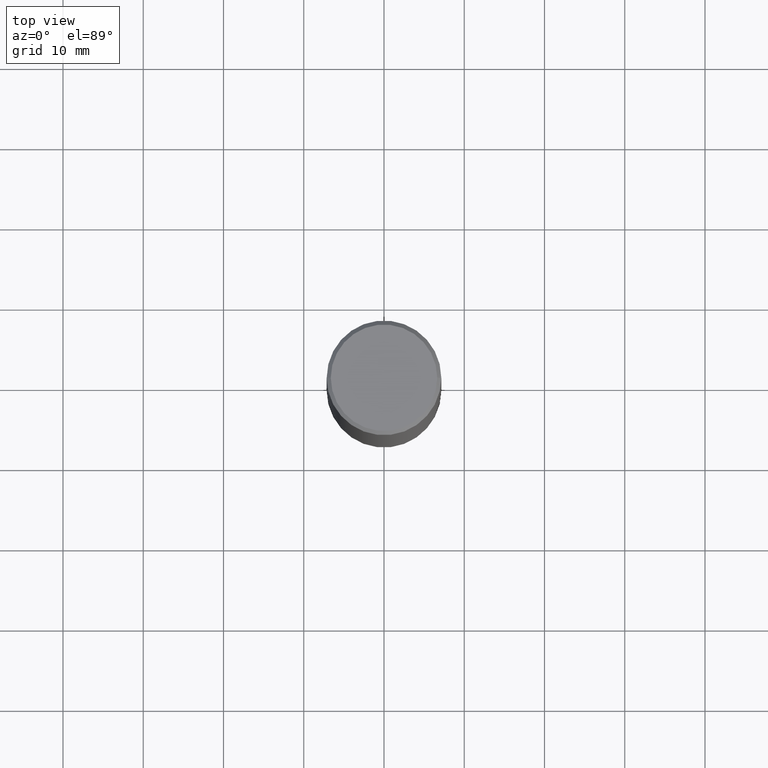
[diagram: clean part render]
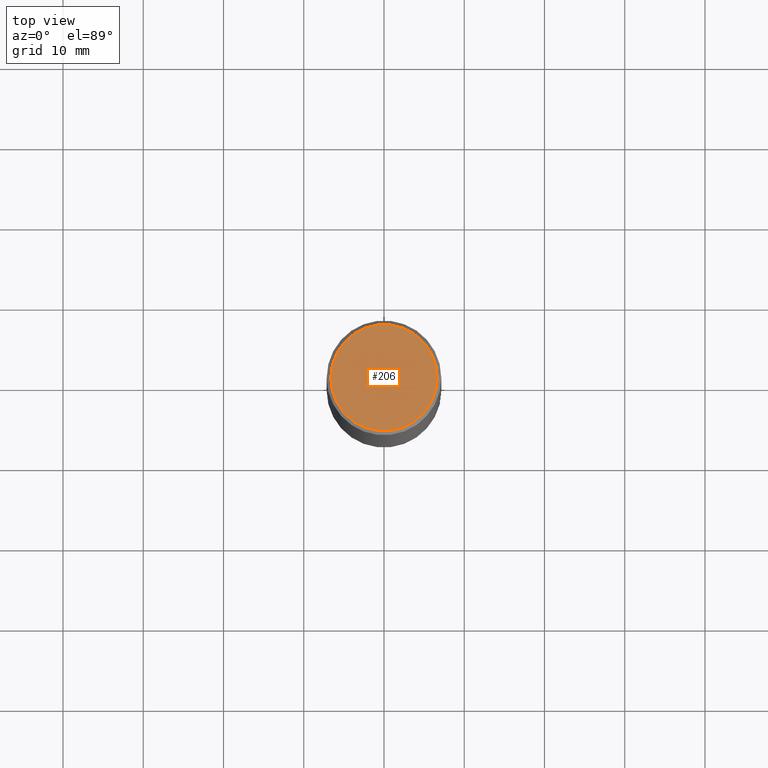
[diagram: same view with one face highlighted and labeled with its STEP entity id]
A machine part, top view. The second image highlights one B-rep face of the part: STEP entity #206.
In plain terms, the highlighted planar face has unit normal (0, -0, -1).
Its self-contained STEP definition (entity closure, byte-faithful):
#9 = AXIS2_PLACEMENT_3D ( 'NONE', #67, #46, #144 ) ;
#14 = CARTESIAN_POINT ( 'NONE',  ( 0.000000000000000000, 0.000000000000000000, 0.000000000000000000 ) ) ;
#16 = CARTESIAN_POINT ( 'NONE',  ( 1.824298999545534733E-15, 0.2612499999999996492, -9.121494997727705218E-16 ) ) ;
#46 = DIRECTION ( 'NONE',  ( -2.445468806185136597E-29, 3.491481338843145583E-15, 1.000000000000000000 ) ) ;
#65 = EDGE_CURVE ( 'NONE', #125, #223, #137, .T. ) ;
#67 = CARTESIAN_POINT ( 'NONE',  ( 0.000000000000000000, 0.000000000000000000, 0.000000000000000000 ) ) ;
#83 = EDGE_CURVE ( 'NONE', #223, #125, #350, .T. ) ;
#95 = AXIS2_PLACEMENT_3D ( 'NONE', #16, #150, #189 ) ;
#118 = DIRECTION ( 'NONE',  ( -2.445468806185136597E-29, 3.491481338843145583E-15, 1.000000000000000000 ) ) ;
#123 = ORIENTED_EDGE ( 'NONE', *, *, #65, .T. ) ;
#125 = VERTEX_POINT ( 'NONE', #280 ) ;
#137 = CIRCLE ( 'NONE', #347, 0.2612499999999996492 ) ;
#144 = DIRECTION ( 'NONE',  ( 1.000000000000000000, -6.982962677686266711E-15, 4.876176775795934672E-29 ) ) ;
#150 = DIRECTION ( 'NONE',  ( 2.438088387897960049E-29, -3.491481338843145188E-15, -1.000000000000000000 ) ) ;
#189 = DIRECTION ( 'NONE',  ( -1.000000000000000000, 6.982962677686265922E-15, -4.876176775795935793E-29 ) ) ;
#206 = ADVANCED_FACE ( 'NONE', ( #360 ), #325, .F. ) ;
#223 = VERTEX_POINT ( 'NONE', #357 ) ;
#280 = CARTESIAN_POINT ( 'NONE',  ( 0.2612499999999996492, -1.895824895283957203E-15, 1.300802449975685690E-29 ) ) ;
#290 = DIRECTION ( 'NONE',  ( 1.000000000000000000, -6.982962677686266711E-15, 4.876176775795934672E-29 ) ) ;
#325 = PLANE ( 'NONE',  #95 ) ;
#333 = ORIENTED_EDGE ( 'NONE', *, *, #83, .T. ) ;
#340 = EDGE_LOOP ( 'NONE', ( #333, #123 ) ) ;
#347 = AXIS2_PLACEMENT_3D ( 'NONE', #14, #118, #290 ) ;
#350 = CIRCLE ( 'NONE', #9, 0.2612499999999996492 ) ;
#357 = CARTESIAN_POINT ( 'NONE',  ( -0.2612499999999996492, 1.859213812933965987E-15, -1.288019758893701349E-29 ) ) ;
#360 = FACE_OUTER_BOUND ( 'NONE', #340, .T. ) ;